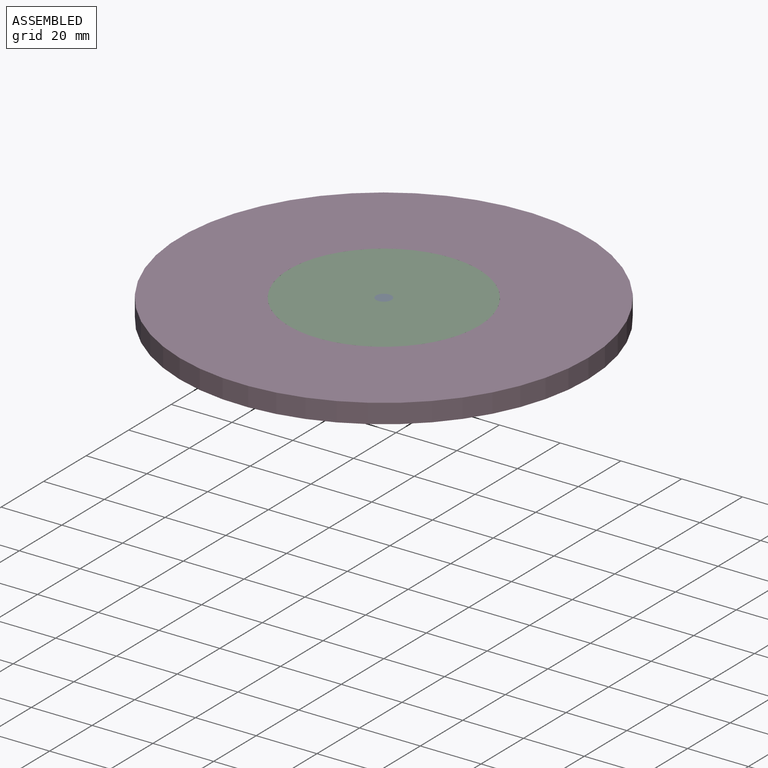
[diagram: assembled view]
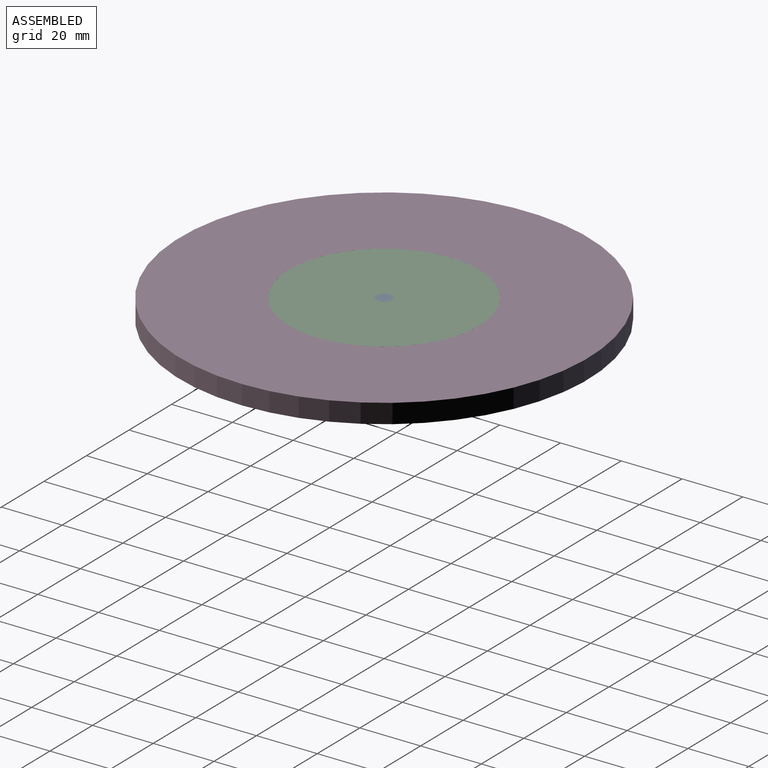
[diagram: assembled view, second angle]
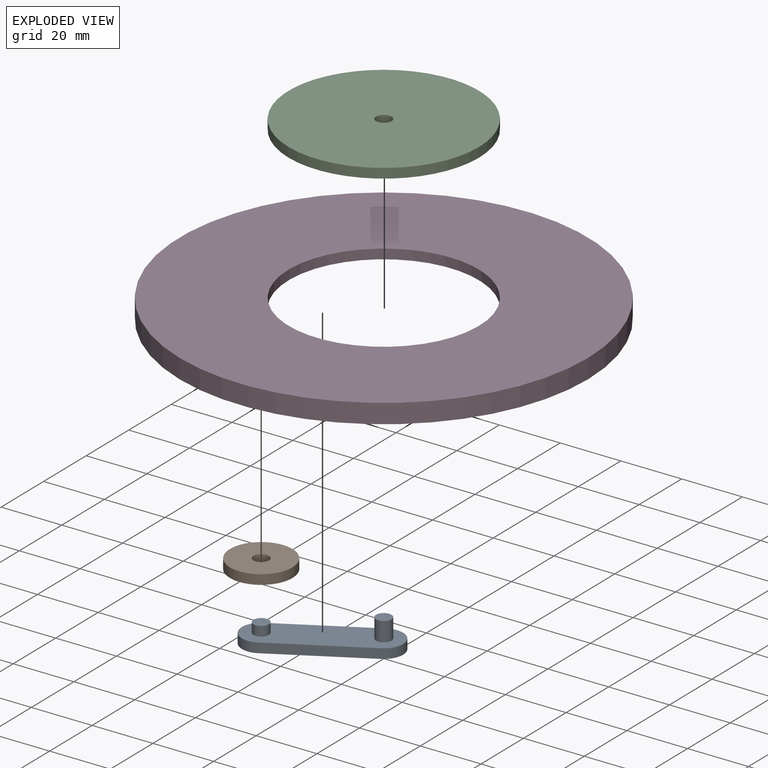
[diagram: exploded view]
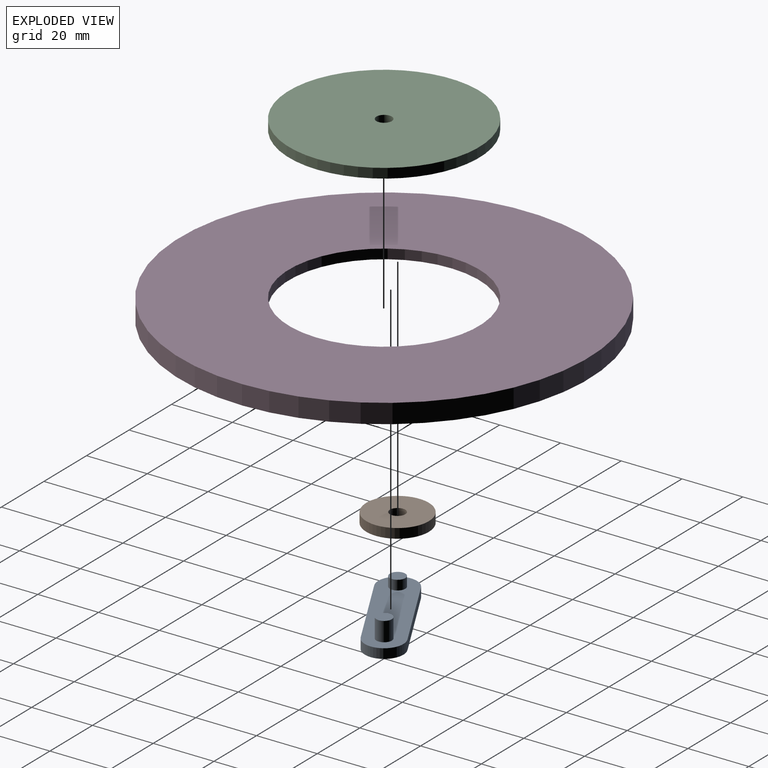
[diagram: exploded view, second angle]
ASSEMBLY  parts=4 mates=3
PART A: 10 faces, bbox 12.7x46x9.5 mm
  f0: plane 33.26x3.18mm, normal (1,0,0), area 105.6mm2, adj f1,f3,f4,f5
  f1: cylinder r=6.35mm len=12.7mm, axis (0,0,1), area 63.3mm2, adj f0,f2,f4,f5
  f2: plane 33.26x3.18mm, normal (-1,0,0), area 105.6mm2, adj f1,f3,f4,f5
  f3: cylinder r=6.35mm len=12.7mm, axis (0,0,1), area 63.3mm2, adj f0,f2,f4,f5
  f4: plane 45.96x12.7mm, normal (0,0,-1), area 549mm2, adj f0,f1,f2,f3
  f5: plane 45.96x12.7mm, normal (0,0,1), area 508.5mm2, adj f0,f1,f2,f3,f7,f9
  f6: plane 5.08x5.08mm, normal (0,0,1), area 20.3mm2, adj f7
  f7: cylinder r=2.54mm len=6.35mm, axis (0,0,-1), area 101.3mm2, adj f5,f6
  f8: plane 5.08x5.08mm, normal (0,0,1), area 20.3mm2, adj f9
  f9: cylinder r=2.54mm len=5.08mm, axis (0,0,-1), area 50.7mm2, adj f5,f8
PART B: 4 faces, bbox 20.5x20.5x3.2 mm
  f0: cylinder r=10.27mm len=20.55mm, axis (0,0,1), area 204.9mm2, adj f1,f2
  f1: plane 20.55x20.55mm, normal (0,0,-1), area 311.3mm2, adj f0,f3
  f2: plane 20.55x20.55mm, normal (0,0,1), area 311.3mm2, adj f0,f3
  f3: cylinder r=2.54mm len=5.08mm, axis (0,0,-1), area 50.7mm2, adj f1,f2
PART C: 6 faces, bbox 62.7x62.7x6.4 mm
  f0: cylinder r=22.98mm len=45.96mm, axis (0,0,1), area 458.5mm2, adj f1,f4
  f1: plane 45.96x45.96mm, normal (0,0,-1), area 1639mm2, adj f0,f5
  f2: cylinder r=31.33mm len=62.66mm, axis (0,0,-1), area 625.1mm2, adj f3,f4
  f3: plane 62.66x62.66mm, normal (0,0,1), area 3063.9mm2, adj f2,f5
  f4: plane 62.66x62.66mm, normal (0,0,-1), area 1424.9mm2, adj f0,f2
  f5: cylinder r=2.54mm len=6.35mm, axis (0,0,-1), area 101.3mm2, adj f1,f3
PART D: 6 faces, bbox 134.3x134.3x6.4 mm
  f0: cylinder r=43.53mm len=87.06mm, axis (0,0,1), area 868.4mm2, adj f2,f3
  f1: cylinder r=67.16mm len=134.33mm, axis (0,0,1), area 2679.7mm2, adj f2,f5
  f2: plane 134.33x134.33mm, normal (0,0,-1), area 8219mm2, adj f0,f1
  f3: plane 87.06x87.06mm, normal (0,0,-1), area 2868.3mm2, adj f0,f4
  f4: cylinder r=31.33mm len=62.66mm, axis (0,0,-1), area 625.1mm2, adj f3,f5
  f5: plane 134.33x134.33mm, normal (0,0,1), area 11087.3mm2, adj f1,f4
PLACE A rot(axis=(0,0,1),118.7deg) t=(0,0,0)mm
PLACE B rot(axis=(0,0,1),126.3deg) t=(-2.35,3.7,0)mm
PLACE C at identity fixed
PLACE D rot(axis=(0,0,1),7.6deg) t=(0,0,0)mm
MATE revolute A.f3 <-> B.f0  axis (0,0,1) through (-29.16,-15.98,0)mm
MATE revolute A.f7 <-> C.f2  axis (0,0,1) through (0,0,3.18)mm
MATE revolute D.f1 <-> C.f2  axis (0,0,1) through (0,0,3.18)mm
